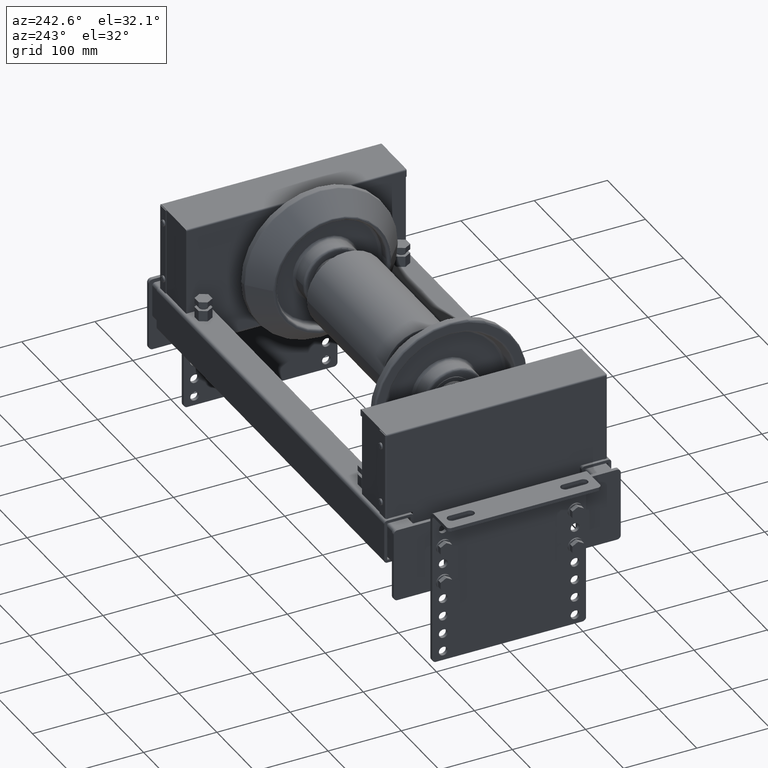
[diagram: clean part render]
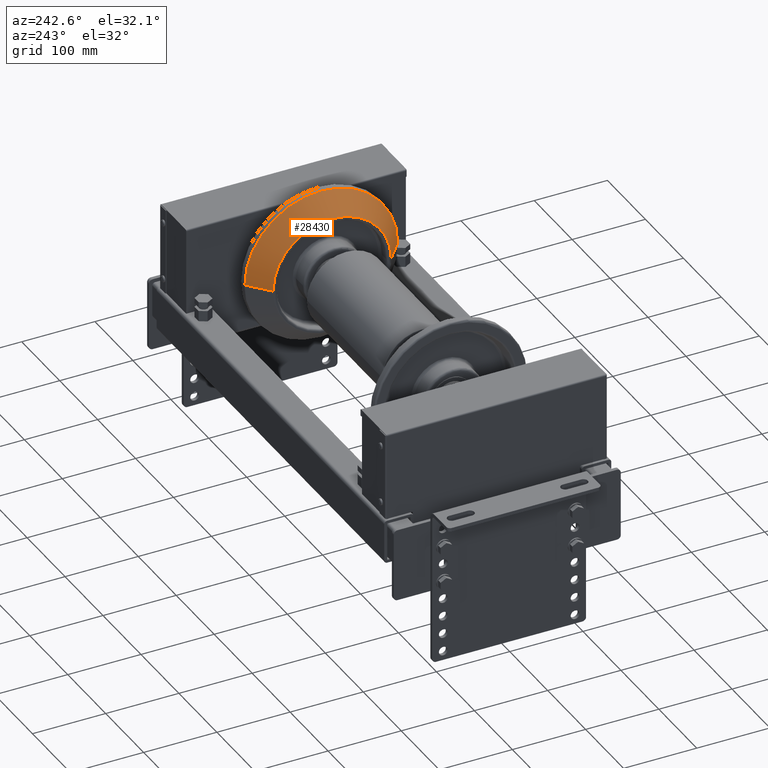
[diagram: same view with one face highlighted and labeled with its STEP entity id]
A machine part, auxiliary view. The second image highlights one B-rep face of the part: STEP entity #28430.
In plain terms, the highlighted conical surface has half-angle 40 deg.
Its self-contained STEP definition (entity closure, byte-faithful):
#28133=CARTESIAN_POINT('',(-19.285575219373122,-80.599473569927952,-9.870589E-015));
#28134=VERTEX_POINT('',#28133);
#28142=CARTESIAN_POINT('',(-19.285575219373115,-9.870589E-015,80.599473569927952));
#28143=VERTEX_POINT('',#28142);
#28144=CARTESIAN_POINT('',(-19.285575219373118,0.0,0.0));
#28145=DIRECTION('',(-1.0,0.0,0.0));
#28146=DIRECTION('',(0.0,-1.0,0.0));
#28147=AXIS2_PLACEMENT_3D('',#28144,#28145,#28146);
#28148=CIRCLE('',#28147,80.599473569927952);
#28149=EDGE_CURVE('',#28134,#28143,#28148,.T.);
#28228=CARTESIAN_POINT('',(9.096796376304386,104.415111107797440,0.0));
#28229=VERTEX_POINT('',#28228);
#28230=CARTESIAN_POINT('',(-19.285575219373118,80.599473569927952,0.0));
#28231=VERTEX_POINT('',#28230);
#28232=CARTESIAN_POINT('',(9.096796376304386,104.415111107797440,0.0));
#28233=DIRECTION('',(-0.766044443118978,-0.642787609686539,0.0));
#28234=VECTOR('',#28233,37.050554769534827);
#28235=LINE('',#28232,#28234);
#28236=EDGE_CURVE('',#28229,#28231,#28235,.T.);
#28247=CARTESIAN_POINT('',(9.096796376304390,-104.415111107797440,-1.278716E-014));
#28248=VERTEX_POINT('',#28247);
#28256=CARTESIAN_POINT('',(9.096796376304390,-104.415111107797440,-1.278716E-014));
#28257=DIRECTION('',(-0.766044443118978,0.642787609686539,7.871878E-017));
#28258=VECTOR('',#28257,37.050554769534827);
#28259=LINE('',#28256,#28258);
#28260=EDGE_CURVE('',#28248,#28134,#28259,.T.);
#28345=CARTESIAN_POINT('',(9.096796376304386,-1.278716E-014,104.415111107797440));
#28346=VERTEX_POINT('',#28345);
#28354=CARTESIAN_POINT('',(9.096796376304386,0.0,0.0));
#28355=DIRECTION('',(1.0,0.0,0.0));
#28356=DIRECTION('',(0.0,-1.0,0.0));
#28357=AXIS2_PLACEMENT_3D('',#28354,#28355,#28356);
#28358=CIRCLE('',#28357,104.415111107797440);
#28359=EDGE_CURVE('',#28346,#28248,#28358,.T.);
#28372=CARTESIAN_POINT('',(9.096796376304386,0.0,0.0));
#28373=DIRECTION('',(1.0,0.0,0.0));
#28374=DIRECTION('',(0.0,-1.0,0.0));
#28375=AXIS2_PLACEMENT_3D('',#28372,#28373,#28374);
#28376=CIRCLE('',#28375,104.415111107797440);
#28377=EDGE_CURVE('',#28229,#28346,#28376,.T.);
#28411=CARTESIAN_POINT('',(-5.103080092572398,0.0,0.0));
#28412=DIRECTION('',(1.0,0.0,0.0));
#28413=DIRECTION('',(0.0,1.0,0.0));
#28414=AXIS2_PLACEMENT_3D('',#28411,#28412,#28413);
#28415=CONICAL_SURFACE('',#28414,92.500000000000000,39.999999999999993);
#28416=ORIENTED_EDGE('',*,*,#28236,.T.);
#28417=CARTESIAN_POINT('',(-19.285575219373118,0.0,0.0));
#28418=DIRECTION('',(-1.0,0.0,0.0));
#28419=DIRECTION('',(0.0,-1.0,0.0));
#28420=AXIS2_PLACEMENT_3D('',#28417,#28418,#28419);
#28421=CIRCLE('',#28420,80.599473569927952);
#28422=EDGE_CURVE('',#28143,#28231,#28421,.T.);
#28423=ORIENTED_EDGE('',*,*,#28422,.F.);
#28424=ORIENTED_EDGE('',*,*,#28149,.F.);
#28425=ORIENTED_EDGE('',*,*,#28260,.F.);
#28426=ORIENTED_EDGE('',*,*,#28359,.F.);
#28427=ORIENTED_EDGE('',*,*,#28377,.F.);
#28428=EDGE_LOOP('',(#28416,#28423,#28424,#28425,#28426,#28427));
#28429=FACE_OUTER_BOUND('',#28428,.T.);
#28430=ADVANCED_FACE('',(#28429),#28415,.T.);